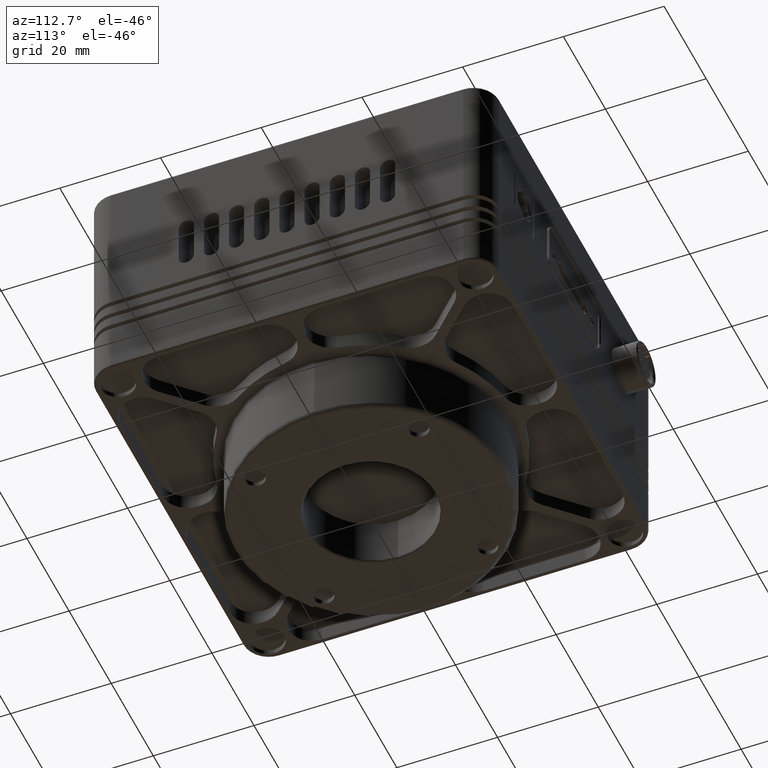
[diagram: clean part render]
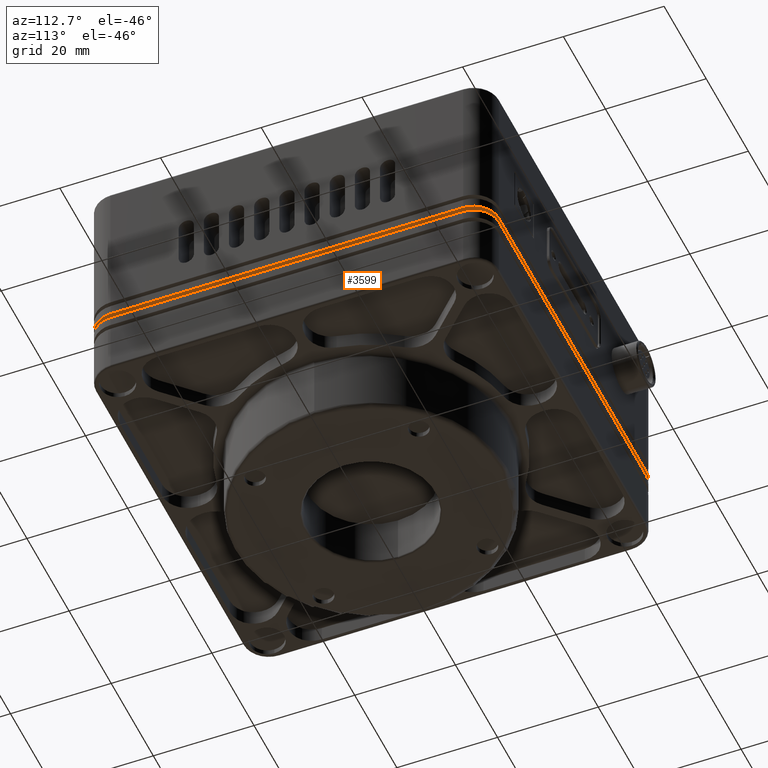
[diagram: same view with one face highlighted and labeled with its STEP entity id]
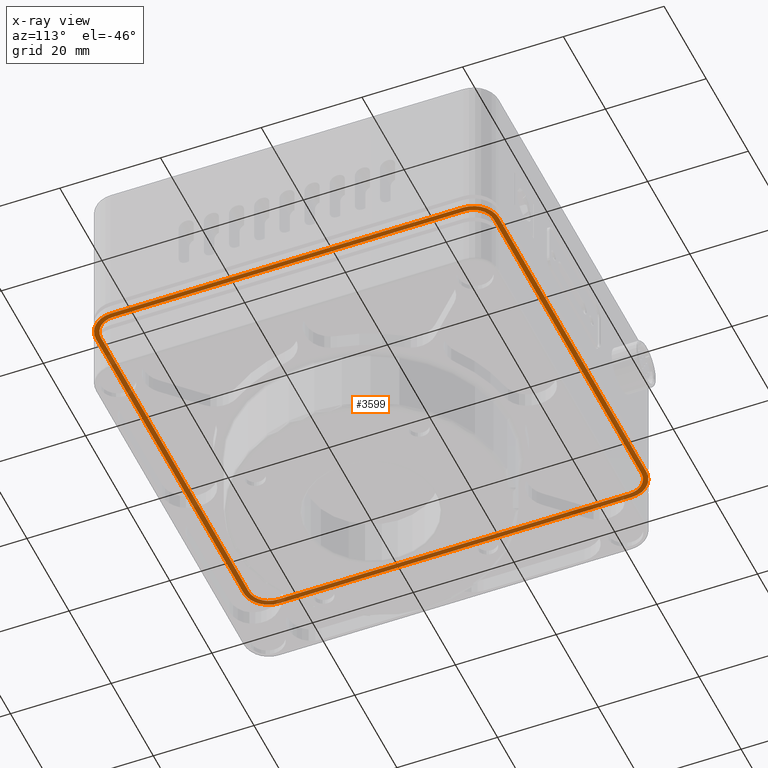
[diagram: x-ray of the same camera — body ghosted, the highlighted face saturated]
A machine part, auxiliary view. The second image highlights one B-rep face of the part: STEP entity #3599.
The next image is the same camera in x-ray: the body ghosted, the highlighted face saturated — about 47% of this face is hidden behind the body in this view.
In plain terms, the highlighted planar face has unit normal (0, 0, -1).
Its self-contained STEP definition (entity closure, byte-faithful):
#43 = DIRECTION ( 'NONE',  ( 0.000000000000000000, 1.000000000000000000, 0.000000000000000000 ) ) ;
#189 = VECTOR ( 'NONE', #25787, 1000.000000000000000 ) ;
#255 = ORIENTED_EDGE ( 'NONE', *, *, #3521, .F. ) ;
#421 = ORIENTED_EDGE ( 'NONE', *, *, #23071, .F. ) ;
#601 = CIRCLE ( 'NONE', #28001, 4.999999999999997335 ) ;
#963 = CARTESIAN_POINT ( 'NONE',  ( 40.00000000000000000, 34.99999999999999289, -1.800000000000002043 ) ) ;
#1398 = CARTESIAN_POINT ( 'NONE',  ( -34.99999999999999289, 40.00000000000000000, -1.800000000000002043 ) ) ;
#2003 = DIRECTION ( 'NONE',  ( -1.000000000000000000, 0.000000000000000000, 0.000000000000000000 ) ) ;
#2065 = LINE ( 'NONE', #37313, #27176 ) ;
#2086 = ORIENTED_EDGE ( 'NONE', *, *, #41268, .F. ) ;
#3016 = DIRECTION ( 'NONE',  ( -1.000000000000000000, 0.000000000000000000, -0.000000000000000000 ) ) ;
#3511 = VERTEX_POINT ( 'NONE', #22519 ) ;
#3521 = EDGE_CURVE ( 'NONE', #39583, #38086, #36212, .T. ) ;
#3599 = ADVANCED_FACE ( 'NONE', ( #30162, #12512 ), #26695, .T. ) ;
#4150 = EDGE_CURVE ( 'NONE', #29472, #43703, #5457, .T. ) ;
#4954 = CARTESIAN_POINT ( 'NONE',  ( 35.00000000000000000, 35.00000000000000000, -1.800000000000002043 ) ) ;
#4979 = DIRECTION ( 'NONE',  ( 0.000000000000000000, 0.000000000000000000, -1.000000000000000000 ) ) ;
#5090 = DIRECTION ( 'NONE',  ( 0.000000000000000000, 0.000000000000000000, -1.000000000000000000 ) ) ;
#5457 = CIRCLE ( 'NONE', #13581, 4.999999999999997335 ) ;
#6081 = AXIS2_PLACEMENT_3D ( 'NONE', #12033, #5090, #32939 ) ;
#6722 = LINE ( 'NONE', #35031, #15964 ) ;
#7049 = EDGE_CURVE ( 'NONE', #14519, #37662, #11101, .T. ) ;
#7121 = EDGE_CURVE ( 'NONE', #8309, #11368, #2065, .T. ) ;
#7615 = CARTESIAN_POINT ( 'NONE',  ( 40.00000000000000000, 34.99999999999999289, -1.800000000000002043 ) ) ;
#8171 = EDGE_CURVE ( 'NONE', #26047, #29472, #6722, .T. ) ;
#8309 = VERTEX_POINT ( 'NONE', #43815 ) ;
#8418 = CARTESIAN_POINT ( 'NONE',  ( -34.99999999999999289, 40.00000000000000000, -1.800000000000002043 ) ) ;
#8448 = CARTESIAN_POINT ( 'NONE',  ( 40.00000000000000000, -35.00000000000000000, -1.800000000000002043 ) ) ;
#8772 = AXIS2_PLACEMENT_3D ( 'NONE', #21627, #43177, #25576 ) ;
#9857 = CARTESIAN_POINT ( 'NONE',  ( 35.00000000000000000, -35.00000000000000000, -1.800000000000002043 ) ) ;
#10442 = CARTESIAN_POINT ( 'NONE',  ( 35.00000000000000000, 35.00000000000000000, -1.800000000000002043 ) ) ;
#11090 = CARTESIAN_POINT ( 'NONE',  ( 35.00000000000000000, 35.00000000000000000, -1.800000000000002043 ) ) ;
#11101 = LINE ( 'NONE', #7615, #16040 ) ;
#11327 = DIRECTION ( 'NONE',  ( 0.000000000000000000, -1.000000000000000000, 0.000000000000000000 ) ) ;
#11368 = VERTEX_POINT ( 'NONE', #42169 ) ;
#11600 = CARTESIAN_POINT ( 'NONE',  ( 39.00000000000000000, 35.00000000000000000, -1.800000000000002043 ) ) ;
#11653 = EDGE_CURVE ( 'NONE', #38086, #18156, #20545, .T. ) ;
#11988 = EDGE_CURVE ( 'NONE', #37662, #8309, #601, .T. ) ;
#12033 = CARTESIAN_POINT ( 'NONE',  ( -35.00000000000000000, 35.00000000000000000, -1.800000000000002043 ) ) ;
#12512 = FACE_OUTER_BOUND ( 'NONE', #26753, .T. ) ;
#12525 = ORIENTED_EDGE ( 'NONE', *, *, #23891, .F. ) ;
#13193 = CARTESIAN_POINT ( 'NONE',  ( 39.00000000000000000, 35.00000000000000000, -1.800000000000002043 ) ) ;
#13220 = ORIENTED_EDGE ( 'NONE', *, *, #11988, .T. ) ;
#13222 = CARTESIAN_POINT ( 'NONE',  ( -34.99999999999999289, 39.00000000000000000, -1.800000000000002043 ) ) ;
#13372 = CARTESIAN_POINT ( 'NONE',  ( 35.00000000000000000, 39.00000000000000000, -1.800000000000002043 ) ) ;
#13581 = AXIS2_PLACEMENT_3D ( 'NONE', #36556, #22640, #43503 ) ;
#14322 = VERTEX_POINT ( 'NONE', #39691 ) ;
#14469 = CIRCLE ( 'NONE', #29281, 3.999999999999996447 ) ;
#14519 = VERTEX_POINT ( 'NONE', #963 ) ;
#14799 = ORIENTED_EDGE ( 'NONE', *, *, #8171, .T. ) ;
#14980 = DIRECTION ( 'NONE',  ( -1.000000000000000000, 0.000000000000000000, 0.000000000000000000 ) ) ;
#15199 = CARTESIAN_POINT ( 'NONE',  ( 34.99999999999999289, -39.00000000000000000, -1.800000000000002043 ) ) ;
#15960 = LINE ( 'NONE', #36855, #39123 ) ;
#15964 = VECTOR ( 'NONE', #43, 1000.000000000000000 ) ;
#15982 = ORIENTED_EDGE ( 'NONE', *, *, #43218, .T. ) ;
#16040 = VECTOR ( 'NONE', #11327, 1000.000000000000000 ) ;
#16521 = CARTESIAN_POINT ( 'NONE',  ( -40.00000000000000000, -34.99999999999999289, -1.800000000000002043 ) ) ;
#16756 = CARTESIAN_POINT ( 'NONE',  ( -34.99999999999999289, 39.00000000000000000, -1.800000000000002043 ) ) ;
#16837 = CARTESIAN_POINT ( 'NONE',  ( 35.00000000000000000, 40.00000000000000000, -1.800000000000002043 ) ) ;
#16935 = DIRECTION ( 'NONE',  ( -1.000000000000000000, 0.000000000000000000, 0.000000000000000000 ) ) ;
#16941 = ORIENTED_EDGE ( 'NONE', *, *, #4150, .T. ) ;
#17816 = CIRCLE ( 'NONE', #43719, 4.999999999999997335 ) ;
#17903 = ORIENTED_EDGE ( 'NONE', *, *, #7049, .T. ) ;
#18131 = AXIS2_PLACEMENT_3D ( 'NONE', #4954, #18651, #32804 ) ;
#18156 = VERTEX_POINT ( 'NONE', #33257 ) ;
#18324 = AXIS2_PLACEMENT_3D ( 'NONE', #9857, #21249, #20788 ) ;
#18493 = ORIENTED_EDGE ( 'NONE', *, *, #11653, .F. ) ;
#18651 = DIRECTION ( 'NONE',  ( 0.000000000000000000, 0.000000000000000000, -1.000000000000000000 ) ) ;
#19644 = VERTEX_POINT ( 'NONE', #16837 ) ;
#19938 = EDGE_LOOP ( 'NONE', ( #41207, #23582, #2086, #18493, #255, #42367, #12525, #421 ) ) ;
#20146 = AXIS2_PLACEMENT_3D ( 'NONE', #11090, #28063, #3016 ) ;
#20545 = CIRCLE ( 'NONE', #18324, 3.999999999999996447 ) ;
#20788 = DIRECTION ( 'NONE',  ( -1.000000000000000000, 0.000000000000000000, 0.000000000000000000 ) ) ;
#21106 = VERTEX_POINT ( 'NONE', #37461 ) ;
#21249 = DIRECTION ( 'NONE',  ( 0.000000000000000000, 0.000000000000000000, -1.000000000000000000 ) ) ;
#21487 = ORIENTED_EDGE ( 'NONE', *, *, #7121, .T. ) ;
#21627 = CARTESIAN_POINT ( 'NONE',  ( -35.00000000000000000, -35.00000000000000000, -1.800000000000002043 ) ) ;
#22194 = DIRECTION ( 'NONE',  ( 0.000000000000000000, 0.000000000000000000, -1.000000000000000000 ) ) ;
#22519 = CARTESIAN_POINT ( 'NONE',  ( -39.00000000000000000, 35.00000000000000000, -1.800000000000002043 ) ) ;
#22640 = DIRECTION ( 'NONE',  ( 0.000000000000000000, 0.000000000000000000, -1.000000000000000000 ) ) ;
#23071 = EDGE_CURVE ( 'NONE', #3511, #31913, #23168, .T. ) ;
#23107 = LINE ( 'NONE', #15199, #28469 ) ;
#23168 = CIRCLE ( 'NONE', #6081, 3.999999999999996447 ) ;
#23173 = DIRECTION ( 'NONE',  ( -1.000000000000000000, 0.000000000000000000, 0.000000000000000000 ) ) ;
#23582 = ORIENTED_EDGE ( 'NONE', *, *, #42412, .F. ) ;
#23891 = EDGE_CURVE ( 'NONE', #31913, #34341, #42238, .T. ) ;
#25576 = DIRECTION ( 'NONE',  ( -1.000000000000000000, 0.000000000000000000, 0.000000000000000000 ) ) ;
#25787 = DIRECTION ( 'NONE',  ( 0.000000000000000000, -1.000000000000000000, 0.000000000000000000 ) ) ;
#25930 = ORIENTED_EDGE ( 'NONE', *, *, #36661, .T. ) ;
#26047 = VERTEX_POINT ( 'NONE', #16521 ) ;
#26293 = CARTESIAN_POINT ( 'NONE',  ( 39.00000000000000000, -35.00000000000000000, -1.800000000000002043 ) ) ;
#26695 = PLANE ( 'NONE',  #20146 ) ;
#26753 = EDGE_LOOP ( 'NONE', ( #25930, #17903, #13220, #21487, #15982, #14799, #16941, #41730 ) ) ;
#26781 = CARTESIAN_POINT ( 'NONE',  ( 35.00000000000000000, -35.00000000000000000, -1.800000000000002043 ) ) ;
#27176 = VECTOR ( 'NONE', #23173, 1000.000000000000000 ) ;
#27400 = DIRECTION ( 'NONE',  ( 0.000000000000000000, 0.000000000000000000, -1.000000000000000000 ) ) ;
#28001 = AXIS2_PLACEMENT_3D ( 'NONE', #26781, #4979, #33745 ) ;
#28063 = DIRECTION ( 'NONE',  ( 0.000000000000000000, 0.000000000000000000, -1.000000000000000000 ) ) ;
#28469 = VECTOR ( 'NONE', #2003, 1000.000000000000000 ) ;
#29281 = AXIS2_PLACEMENT_3D ( 'NONE', #36105, #22194, #14980 ) ;
#29472 = VERTEX_POINT ( 'NONE', #39151 ) ;
#29512 = CIRCLE ( 'NONE', #8772, 4.999999999999997335 ) ;
#29980 = EDGE_CURVE ( 'NONE', #21106, #3511, #15960, .T. ) ;
#30162 = FACE_BOUND ( 'NONE', #19938, .T. ) ;
#31913 = VERTEX_POINT ( 'NONE', #16756 ) ;
#32804 = DIRECTION ( 'NONE',  ( -1.000000000000000000, 0.000000000000000000, 0.000000000000000000 ) ) ;
#32939 = DIRECTION ( 'NONE',  ( -1.000000000000000000, 0.000000000000000000, 0.000000000000000000 ) ) ;
#33257 = CARTESIAN_POINT ( 'NONE',  ( 34.99999999999999289, -39.00000000000000000, -1.800000000000002043 ) ) ;
#33745 = DIRECTION ( 'NONE',  ( -1.000000000000000000, 0.000000000000000000, 0.000000000000000000 ) ) ;
#33967 = VECTOR ( 'NONE', #37423, 1000.000000000000000 ) ;
#34341 = VERTEX_POINT ( 'NONE', #13372 ) ;
#35031 = CARTESIAN_POINT ( 'NONE',  ( -40.00000000000000000, -34.99999999999999289, -1.800000000000002043 ) ) ;
#36105 = CARTESIAN_POINT ( 'NONE',  ( -35.00000000000000000, -35.00000000000000000, -1.800000000000002043 ) ) ;
#36212 = LINE ( 'NONE', #11600, #189 ) ;
#36556 = CARTESIAN_POINT ( 'NONE',  ( -35.00000000000000000, 35.00000000000000000, -1.800000000000002043 ) ) ;
#36661 = EDGE_CURVE ( 'NONE', #19644, #14519, #17816, .T. ) ;
#36855 = CARTESIAN_POINT ( 'NONE',  ( -39.00000000000000000, -34.99999999999999289, -1.800000000000002043 ) ) ;
#37313 = CARTESIAN_POINT ( 'NONE',  ( 34.99999999999999289, -40.00000000000000000, -1.800000000000002043 ) ) ;
#37423 = DIRECTION ( 'NONE',  ( 1.000000000000000000, 0.000000000000000000, 0.000000000000000000 ) ) ;
#37461 = CARTESIAN_POINT ( 'NONE',  ( -39.00000000000000000, -35.00000000000000000, -1.800000000000002043 ) ) ;
#37662 = VERTEX_POINT ( 'NONE', #8448 ) ;
#38086 = VERTEX_POINT ( 'NONE', #26293 ) ;
#38110 = CIRCLE ( 'NONE', #18131, 3.999999999999996447 ) ;
#39123 = VECTOR ( 'NONE', #44026, 1000.000000000000000 ) ;
#39151 = CARTESIAN_POINT ( 'NONE',  ( -40.00000000000000000, 35.00000000000000000, -1.800000000000002043 ) ) ;
#39583 = VERTEX_POINT ( 'NONE', #13193 ) ;
#39691 = CARTESIAN_POINT ( 'NONE',  ( -35.00000000000000000, -39.00000000000000000, -1.800000000000002043 ) ) ;
#41207 = ORIENTED_EDGE ( 'NONE', *, *, #29980, .F. ) ;
#41268 = EDGE_CURVE ( 'NONE', #18156, #14322, #23107, .T. ) ;
#41730 = ORIENTED_EDGE ( 'NONE', *, *, #42934, .T. ) ;
#41760 = DIRECTION ( 'NONE',  ( 1.000000000000000000, 0.000000000000000000, 0.000000000000000000 ) ) ;
#41779 = EDGE_CURVE ( 'NONE', #34341, #39583, #38110, .T. ) ;
#42169 = CARTESIAN_POINT ( 'NONE',  ( -35.00000000000000000, -40.00000000000000000, -1.800000000000002043 ) ) ;
#42238 = LINE ( 'NONE', #13222, #44687 ) ;
#42367 = ORIENTED_EDGE ( 'NONE', *, *, #41779, .F. ) ;
#42412 = EDGE_CURVE ( 'NONE', #14322, #21106, #14469, .T. ) ;
#42934 = EDGE_CURVE ( 'NONE', #43703, #19644, #43685, .T. ) ;
#43177 = DIRECTION ( 'NONE',  ( 0.000000000000000000, 0.000000000000000000, -1.000000000000000000 ) ) ;
#43218 = EDGE_CURVE ( 'NONE', #11368, #26047, #29512, .T. ) ;
#43503 = DIRECTION ( 'NONE',  ( -1.000000000000000000, 0.000000000000000000, 0.000000000000000000 ) ) ;
#43685 = LINE ( 'NONE', #8418, #33967 ) ;
#43703 = VERTEX_POINT ( 'NONE', #1398 ) ;
#43719 = AXIS2_PLACEMENT_3D ( 'NONE', #10442, #27400, #16935 ) ;
#43815 = CARTESIAN_POINT ( 'NONE',  ( 34.99999999999999289, -40.00000000000000000, -1.800000000000002043 ) ) ;
#44026 = DIRECTION ( 'NONE',  ( 0.000000000000000000, 1.000000000000000000, 0.000000000000000000 ) ) ;
#44687 = VECTOR ( 'NONE', #41760, 1000.000000000000000 ) ;